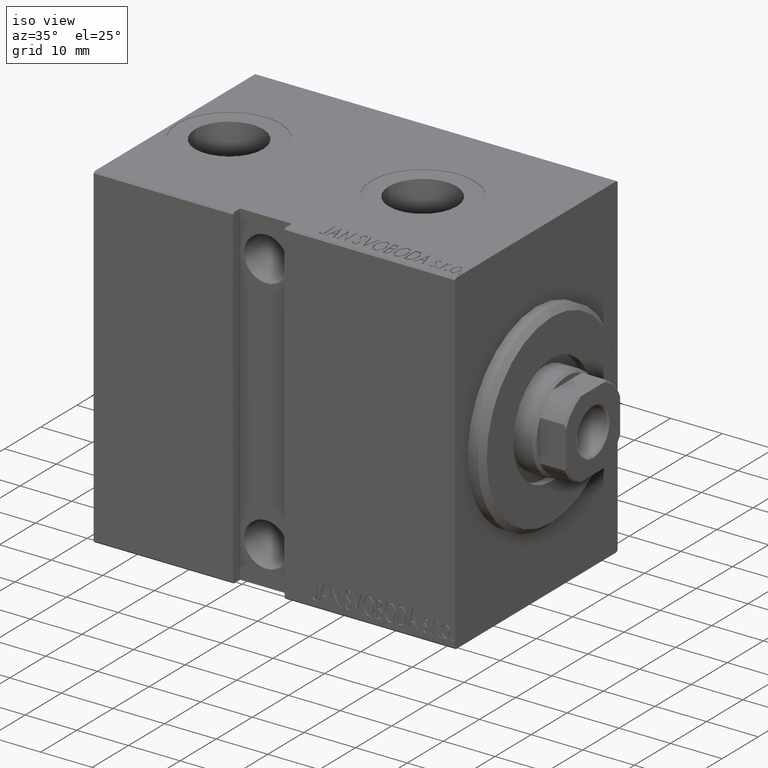
[diagram: clean part render]
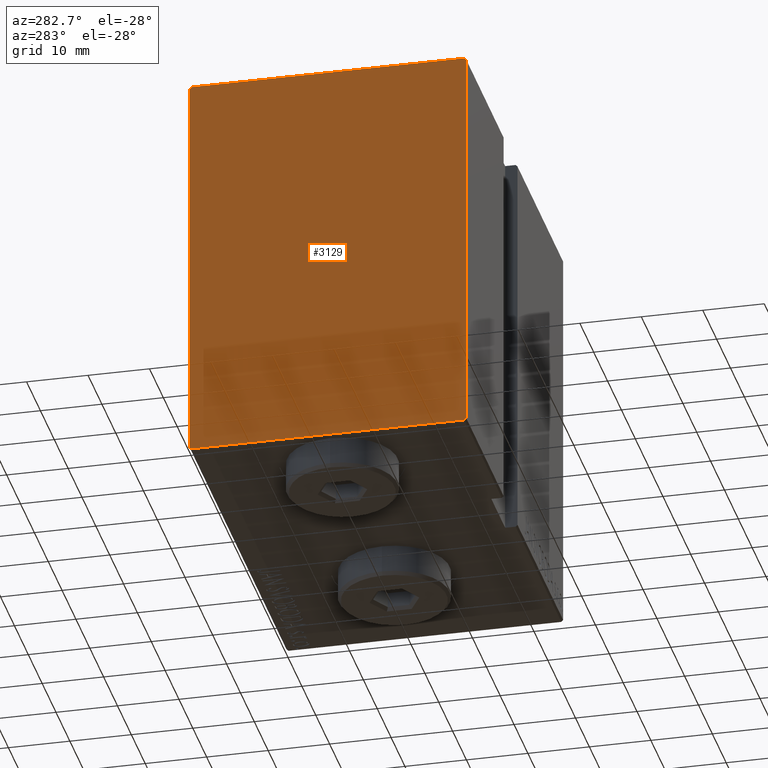
[diagram: tour spotlight — one face highlighted and labeled with its STEP entity id]
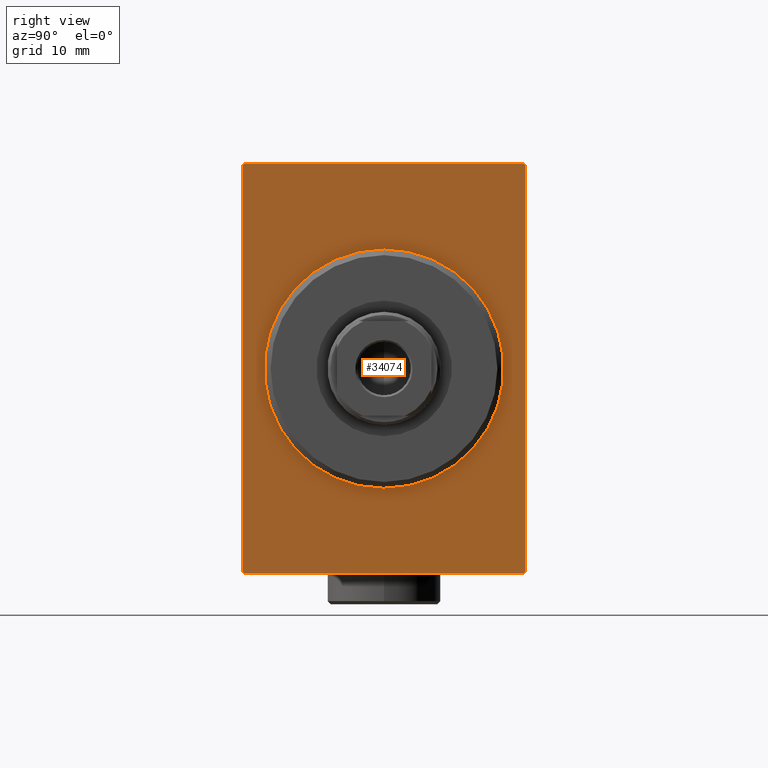
[diagram: tour spotlight — one face highlighted and labeled with its STEP entity id]
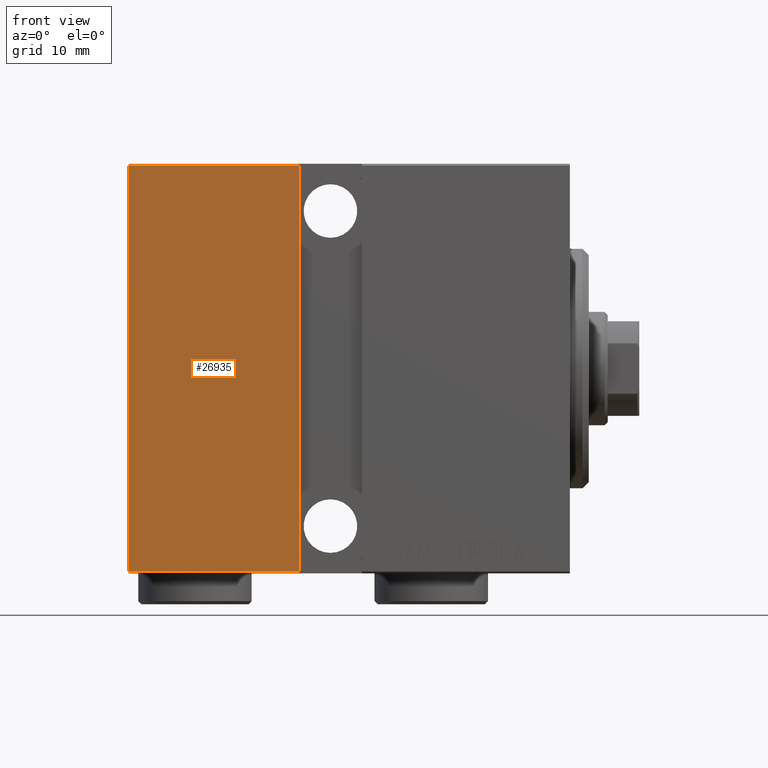
[diagram: tour spotlight — one face highlighted and labeled with its STEP entity id]
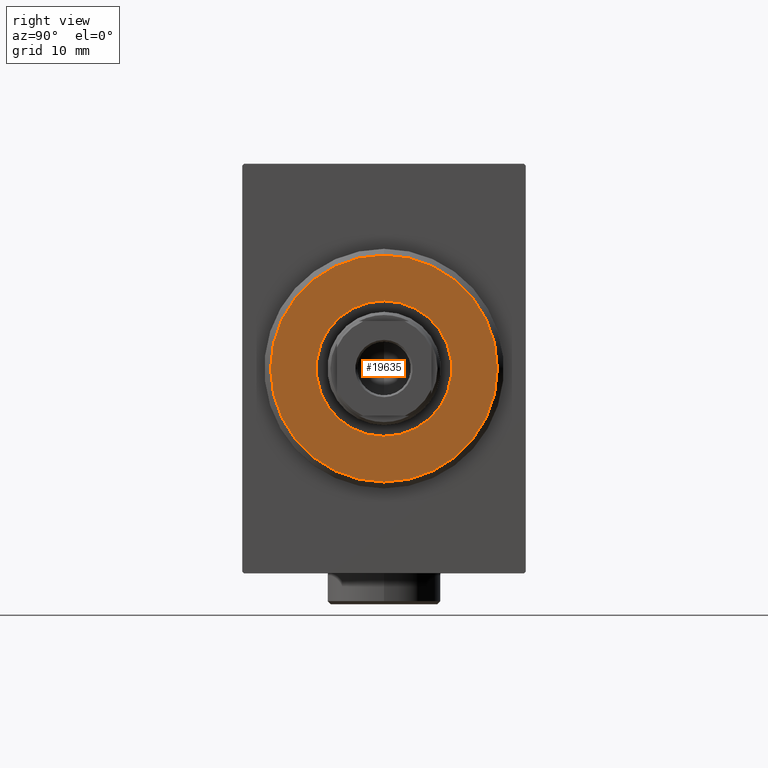
[diagram: tour spotlight — one face highlighted and labeled with its STEP entity id]
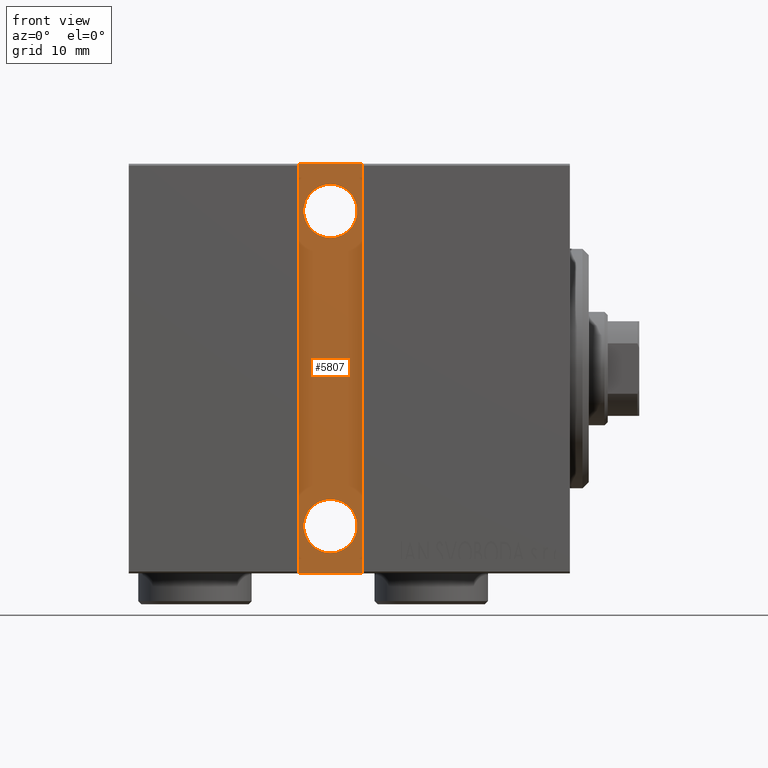
[diagram: tour spotlight — one face highlighted and labeled with its STEP entity id]
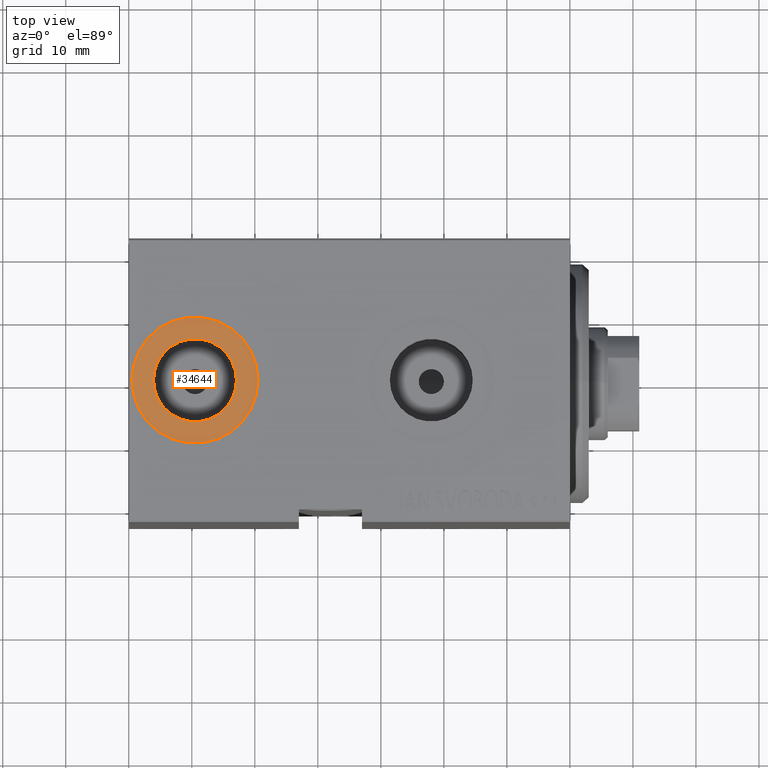
[diagram: tour spotlight — one face highlighted and labeled with its STEP entity id]
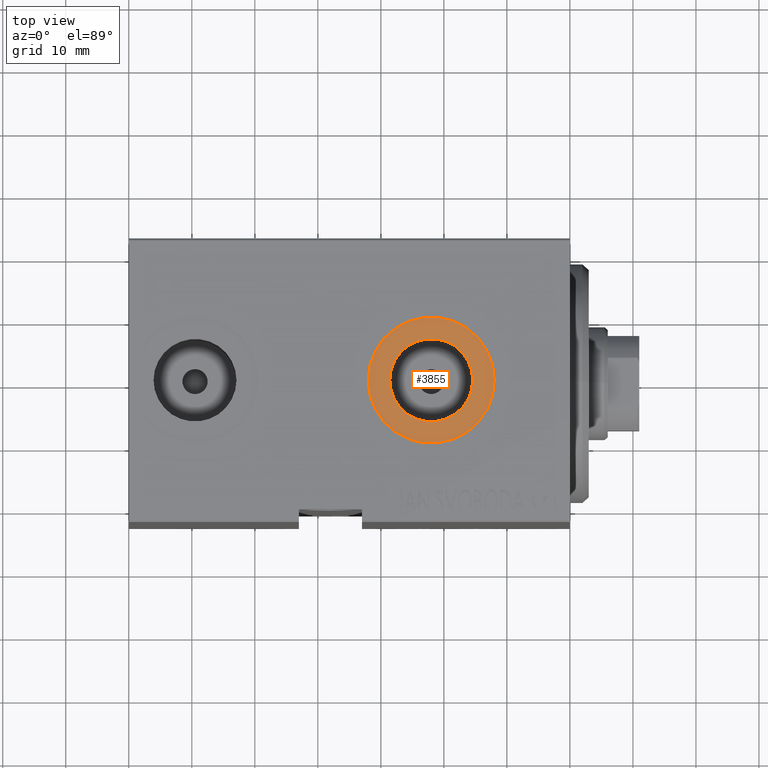
[diagram: tour spotlight — one face highlighted and labeled with its STEP entity id]
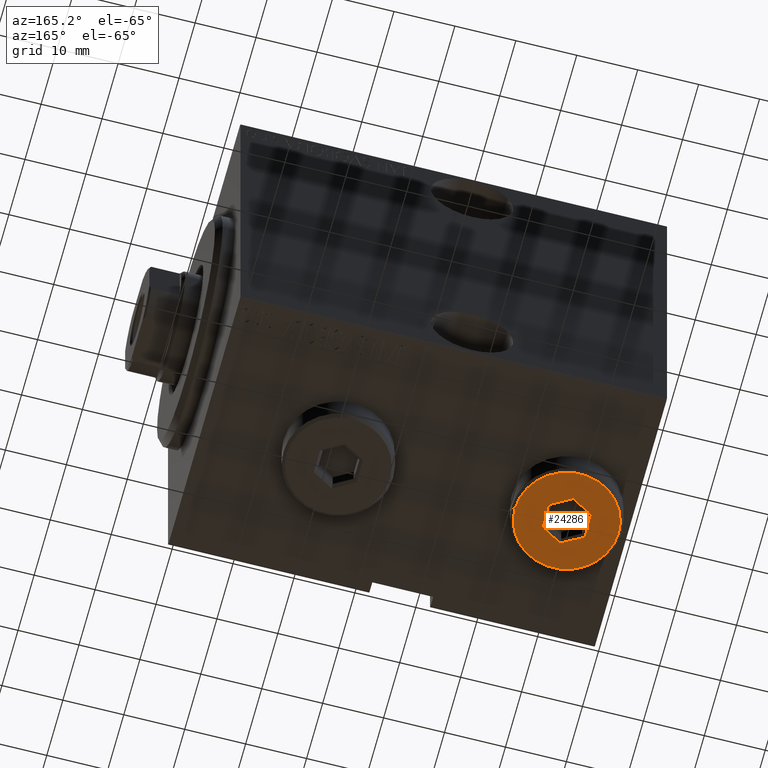
[diagram: tour spotlight — one face highlighted and labeled with its STEP entity id]
A machine part: a face-by-face anatomy tour. The part has 900 B-rep faces; the first image is the clean iso view, then the 8 largest visible faces are spotlighted one at a time (largest first), each with its STEP entity span.

Face 1 — auxiliary view, entity #3129. In plain terms, the highlighted planar face has unit normal (-1, 0, 0).
Definition (entity closure, byte-faithful):
#384 = EDGE_CURVE ( 'NONE', #14813, #21566, #23556, .T. ) ;
#1738 = CARTESIAN_POINT ( 'NONE',  ( 70.00000000000000000, 22.49999999999999645, 32.20000000000000284 ) ) ;
#2162 = DIRECTION ( 'NONE',  ( 0.000000000000000000, -1.067522139062650425E-16, 1.000000000000000000 ) ) ;
#2276 = VECTOR ( 'NONE', #36977, 1000.000000000000000 ) ;
#3084 = ORIENTED_EDGE ( 'NONE', *, *, #17445, .T. ) ;
#3129 = ADVANCED_FACE ( 'NONE', ( #37179 ), #30693, .T. ) ;
#3992 = EDGE_CURVE ( 'NONE', #15362, #18437, #30060, .T. ) ;
#4915 = EDGE_CURVE ( 'NONE', #15249, #14813, #22967, .T. ) ;
#5489 = LINE ( 'NONE', #14869, #30431 ) ;
#6127 = CARTESIAN_POINT ( 'NONE',  ( 70.00000000000000000, -22.49999999999999645, 32.20000000000000284 ) ) ;
#7268 = CARTESIAN_POINT ( 'NONE',  ( 70.00000000000000000, 22.49999999999999645, 32.50000000000000711 ) ) ;
#7403 = CARTESIAN_POINT ( 'NONE',  ( 70.00000000000000000, -22.19999999999998863, 32.50000000000000000 ) ) ;
#7725 = DIRECTION ( 'NONE',  ( -0.000000000000000000, -0.7071067811865393571, 0.7071067811865556774 ) ) ;
#11396 = ORIENTED_EDGE ( 'NONE', *, *, #384, .T. ) ;
#11893 = CARTESIAN_POINT ( 'NONE',  ( 70.00000000000000000, 22.19999999999999929, 32.50000000000000711 ) ) ;
#12931 = VECTOR ( 'NONE', #44171, 1000.000000000000114 ) ;
#13710 = CARTESIAN_POINT ( 'NONE',  ( 70.00000000000000000, 0.000000000000000000, 0.000000000000000000 ) ) ;
#14813 = VERTEX_POINT ( 'NONE', #17976 ) ;
#14869 = CARTESIAN_POINT ( 'NONE',  ( 70.00000000000000000, -27.35000000000000142, 27.35000000000000142 ) ) ;
#15249 = VERTEX_POINT ( 'NONE', #25446 ) ;
#15362 = VERTEX_POINT ( 'NONE', #26983 ) ;
#16236 = ORIENTED_EDGE ( 'NONE', *, *, #26468, .T. ) ;
#17007 = EDGE_LOOP ( 'NONE', ( #11396, #32890, #30630, #16236, #3084, #25378, #23686, #41475 ) ) ;
#17085 = CARTESIAN_POINT ( 'NONE',  ( 70.00000000000000000, -22.49999999999999645, -32.50000000000000000 ) ) ;
#17445 = EDGE_CURVE ( 'NONE', #43656, #37512, #34286, .T. ) ;
#17765 = LINE ( 'NONE', #30724, #27166 ) ;
#17976 = CARTESIAN_POINT ( 'NONE',  ( 70.00000000000000000, -22.19999999999999929, -32.50000000000000000 ) ) ;
#18338 = EDGE_CURVE ( 'NONE', #21566, #15362, #27412, .T. ) ;
#18437 = VERTEX_POINT ( 'NONE', #1738 ) ;
#19419 = EDGE_CURVE ( 'NONE', #21954, #15249, #32338, .T. ) ;
#20274 = CARTESIAN_POINT ( 'NONE',  ( 70.00000000000000000, -27.35000000000000142, -27.35000000000000142 ) ) ;
#20313 = VECTOR ( 'NONE', #38824, 1000.000000000000000 ) ;
#21461 = AXIS2_PLACEMENT_3D ( 'NONE', #13710, #37397, #37836 ) ;
#21566 = VERTEX_POINT ( 'NONE', #21872 ) ;
#21872 = CARTESIAN_POINT ( 'NONE',  ( 70.00000000000000000, 22.19999999999998153, -32.50000000000000000 ) ) ;
#21954 = VERTEX_POINT ( 'NONE', #6127 ) ;
#22967 = LINE ( 'NONE', #20274, #12931 ) ;
#23415 = CARTESIAN_POINT ( 'NONE',  ( 70.00000000000000000, 27.34999999999999432, -27.34999999999999432 ) ) ;
#23556 = LINE ( 'NONE', #17085, #2276 ) ;
#23637 = EDGE_CURVE ( 'NONE', #37512, #21954, #5489, .T. ) ;
#23686 = ORIENTED_EDGE ( 'NONE', *, *, #19419, .T. ) ;
#25378 = ORIENTED_EDGE ( 'NONE', *, *, #23637, .T. ) ;
#25446 = CARTESIAN_POINT ( 'NONE',  ( 70.00000000000000000, -22.49999999999999645, -32.20000000000000284 ) ) ;
#26468 = EDGE_CURVE ( 'NONE', #18437, #43656, #17765, .T. ) ;
#26983 = CARTESIAN_POINT ( 'NONE',  ( 70.00000000000000000, 22.50000000000000355, -32.19999999999999574 ) ) ;
#27166 = VECTOR ( 'NONE', #7725, 1000.000000000000000 ) ;
#27412 = LINE ( 'NONE', #23415, #36742 ) ;
#28219 = VECTOR ( 'NONE', #41882, 1000.000000000000000 ) ;
#30060 = LINE ( 'NONE', #32962, #36494 ) ;
#30431 = VECTOR ( 'NONE', #32064, 1000.000000000000114 ) ;
#30630 = ORIENTED_EDGE ( 'NONE', *, *, #3992, .T. ) ;
#30693 = PLANE ( 'NONE',  #21461 ) ;
#30724 = CARTESIAN_POINT ( 'NONE',  ( 70.00000000000000000, 27.35000000000026077, 27.34999999999962839 ) ) ;
#30995 = DIRECTION ( 'NONE',  ( -0.000000000000000000, 0.7071067811865474617, 0.7071067811865474617 ) ) ;
#32064 = DIRECTION ( 'NONE',  ( 0.000000000000000000, -0.7071067811865474617, -0.7071067811865474617 ) ) ;
#32119 = CARTESIAN_POINT ( 'NONE',  ( 70.00000000000000000, -22.49999999999999645, 32.50000000000000000 ) ) ;
#32338 = LINE ( 'NONE', #32119, #20313 ) ;
#32890 = ORIENTED_EDGE ( 'NONE', *, *, #18338, .T. ) ;
#32962 = CARTESIAN_POINT ( 'NONE',  ( 70.00000000000000000, 22.50000000000000355, -32.50000000000000000 ) ) ;
#34286 = LINE ( 'NONE', #7268, #28219 ) ;
#36494 = VECTOR ( 'NONE', #2162, 1000.000000000000000 ) ;
#36742 = VECTOR ( 'NONE', #30995, 1000.000000000000114 ) ;
#36977 = DIRECTION ( 'NONE',  ( 0.000000000000000000, 1.000000000000000000, 0.000000000000000000 ) ) ;
#37179 = FACE_OUTER_BOUND ( 'NONE', #17007, .T. ) ;
#37397 = DIRECTION ( 'NONE',  ( 1.000000000000000000, 0.000000000000000000, 0.000000000000000000 ) ) ;
#37512 = VERTEX_POINT ( 'NONE', #7403 ) ;
#37836 = DIRECTION ( 'NONE',  ( 0.000000000000000000, 0.000000000000000000, -1.000000000000000000 ) ) ;
#38824 = DIRECTION ( 'NONE',  ( 0.000000000000000000, 0.000000000000000000, -1.000000000000000000 ) ) ;
#41475 = ORIENTED_EDGE ( 'NONE', *, *, #4915, .T. ) ;
#41882 = DIRECTION ( 'NONE',  ( 0.000000000000000000, -1.000000000000000000, -1.541976423090495633E-16 ) ) ;
#43656 = VERTEX_POINT ( 'NONE', #11893 ) ;
#44171 = DIRECTION ( 'NONE',  ( -0.000000000000000000, 0.7071067811865474617, -0.7071067811865474617 ) ) ;

Face 2 — right view, entity #34074. In plain terms, the highlighted planar face has unit normal (-1, 0, 0).
Definition (entity closure, byte-faithful):
#67 = CARTESIAN_POINT ( 'NONE',  ( 0.000000000000000000, 0.000000000000000000, 18.50000000000000355 ) ) ;
#90 = CARTESIAN_POINT ( 'NONE',  ( 0.000000000000000000, 0.000000000000000000, 0.000000000000000000 ) ) ;
#1266 = DIRECTION ( 'NONE',  ( 0.000000000000000000, 0.000000000000000000, -1.000000000000000000 ) ) ;
#1340 = CARTESIAN_POINT ( 'NONE',  ( 0.000000000000000000, 22.49999999999999645, 32.50000000000000711 ) ) ;
#1813 = VERTEX_POINT ( 'NONE', #36882 ) ;
#1860 = VECTOR ( 'NONE', #29313, 1000.000000000000000 ) ;
#1865 = EDGE_CURVE ( 'NONE', #33416, #36152, #17206, .T. ) ;
#2483 = VERTEX_POINT ( 'NONE', #40783 ) ;
#3160 = VECTOR ( 'NONE', #15499, 1000.000000000000114 ) ;
#3491 = VERTEX_POINT ( 'NONE', #67 ) ;
#3582 = VERTEX_POINT ( 'NONE', #41581 ) ;
#3938 = CARTESIAN_POINT ( 'NONE',  ( 0.000000000000000000, 0.000000000000000000, 0.000000000000000000 ) ) ;
#4633 = ORIENTED_EDGE ( 'NONE', *, *, #37374, .T. ) ;
#8055 = EDGE_CURVE ( 'NONE', #17882, #20972, #12914, .T. ) ;
#8500 = CARTESIAN_POINT ( 'NONE',  ( 0.000000000000000000, 22.19999999999999929, 32.50000000000000711 ) ) ;
#8922 = VECTOR ( 'NONE', #36443, 1000.000000000000114 ) ;
#9695 = DIRECTION ( 'NONE',  ( 0.000000000000000000, 0.000000000000000000, -1.000000000000000000 ) ) ;
#9713 = CARTESIAN_POINT ( 'NONE',  ( 0.000000000000000000, 22.19999999999998153, -32.50000000000000000 ) ) ;
#12678 = FACE_OUTER_BOUND ( 'NONE', #39360, .T. ) ;
#12914 = LINE ( 'NONE', #19626, #40168 ) ;
#13252 = CARTESIAN_POINT ( 'NONE',  ( 0.000000000000000000, -22.49999999999999645, 32.20000000000000284 ) ) ;
#13287 = EDGE_CURVE ( 'NONE', #2483, #20972, #32035, .T. ) ;
#13338 = PLANE ( 'NONE',  #17459 ) ;
#14836 = EDGE_CURVE ( 'NONE', #17882, #1813, #42101, .T. ) ;
#15050 = CARTESIAN_POINT ( 'NONE',  ( 0.000000000000000000, -22.19999999999999929, -32.50000000000000000 ) ) ;
#15499 = DIRECTION ( 'NONE',  ( -0.000000000000000000, -0.7071067811865474617, 0.7071067811865474617 ) ) ;
#15685 = LINE ( 'NONE', #19483, #1860 ) ;
#15695 = LINE ( 'NONE', #29323, #34000 ) ;
#15742 = VERTEX_POINT ( 'NONE', #20237 ) ;
#16257 = FACE_BOUND ( 'NONE', #21501, .T. ) ;
#16603 = ORIENTED_EDGE ( 'NONE', *, *, #24007, .F. ) ;
#16829 = ORIENTED_EDGE ( 'NONE', *, *, #38400, .F. ) ;
#17206 = LINE ( 'NONE', #24117, #19302 ) ;
#17459 = AXIS2_PLACEMENT_3D ( 'NONE', #29886, #40595, #19601 ) ;
#17787 = ORIENTED_EDGE ( 'NONE', *, *, #35999, .T. ) ;
#17882 = VERTEX_POINT ( 'NONE', #13252 ) ;
#18202 = CARTESIAN_POINT ( 'NONE',  ( 0.000000000000000000, -22.49999999999999645, 32.20000000000000284 ) ) ;
#19302 = VECTOR ( 'NONE', #31491, 1000.000000000000114 ) ;
#19483 = CARTESIAN_POINT ( 'NONE',  ( 0.000000000000000000, 22.19999999999999929, 32.50000000000000711 ) ) ;
#19601 = DIRECTION ( 'NONE',  ( 0.000000000000000000, 0.000000000000000000, -1.000000000000000000 ) ) ;
#19626 = CARTESIAN_POINT ( 'NONE',  ( 0.000000000000000000, -22.49999999999999645, 32.50000000000000000 ) ) ;
#19702 = VECTOR ( 'NONE', #22221, 1000.000000000000000 ) ;
#20237 = CARTESIAN_POINT ( 'NONE',  ( 0.000000000000000000, 22.49999999999999645, 32.20000000000000284 ) ) ;
#20972 = VERTEX_POINT ( 'NONE', #22632 ) ;
#21501 = EDGE_LOOP ( 'NONE', ( #17787, #25572 ) ) ;
#22221 = DIRECTION ( 'NONE',  ( 0.000000000000000000, -1.067522139062650425E-16, 1.000000000000000000 ) ) ;
#22632 = CARTESIAN_POINT ( 'NONE',  ( 0.000000000000000000, -22.49999999999999645, -32.20000000000000284 ) ) ;
#22736 = ORIENTED_EDGE ( 'NONE', *, *, #13287, .T. ) ;
#24007 = EDGE_CURVE ( 'NONE', #2483, #36152, #15695, .T. ) ;
#24117 = CARTESIAN_POINT ( 'NONE',  ( 0.000000000000000000, 22.50000000000000355, -32.19999999999999574 ) ) ;
#25572 = ORIENTED_EDGE ( 'NONE', *, *, #25606, .T. ) ;
#25606 = EDGE_CURVE ( 'NONE', #3582, #3491, #34322, .T. ) ;
#26866 = DIRECTION ( 'NONE',  ( 1.000000000000000000, 0.000000000000000000, 0.000000000000000000 ) ) ;
#29313 = DIRECTION ( 'NONE',  ( -0.000000000000000000, 0.7071067811865393571, -0.7071067811865556774 ) ) ;
#29323 = CARTESIAN_POINT ( 'NONE',  ( 0.000000000000000000, -22.49999999999999645, -32.50000000000000000 ) ) ;
#29886 = CARTESIAN_POINT ( 'NONE',  ( 0.000000000000000000, 0.000000000000000000, 0.000000000000000000 ) ) ;
#30035 = AXIS2_PLACEMENT_3D ( 'NONE', #90, #26866, #9695 ) ;
#30551 = ORIENTED_EDGE ( 'NONE', *, *, #14836, .T. ) ;
#31491 = DIRECTION ( 'NONE',  ( 0.000000000000000000, -0.7071067811865474617, -0.7071067811865474617 ) ) ;
#32035 = LINE ( 'NONE', #15050, #3160 ) ;
#32054 = DIRECTION ( 'NONE',  ( 1.000000000000000000, 0.000000000000000000, 0.000000000000000000 ) ) ;
#32729 = LINE ( 'NONE', #35424, #19702 ) ;
#33416 = VERTEX_POINT ( 'NONE', #39467 ) ;
#33470 = DIRECTION ( 'NONE',  ( 0.000000000000000000, 0.000000000000000000, -1.000000000000000000 ) ) ;
#33676 = ORIENTED_EDGE ( 'NONE', *, *, #37995, .F. ) ;
#33986 = VECTOR ( 'NONE', #37955, 1000.000000000000000 ) ;
#34000 = VECTOR ( 'NONE', #36247, 1000.000000000000000 ) ;
#34074 = ADVANCED_FACE ( 'NONE', ( #16257, #12678 ), #13338, .F. ) ;
#34322 = CIRCLE ( 'NONE', #30035, 18.50000000000000355 ) ;
#35265 = LINE ( 'NONE', #1340, #33986 ) ;
#35424 = CARTESIAN_POINT ( 'NONE',  ( 0.000000000000000000, 22.50000000000000355, -32.50000000000000000 ) ) ;
#35999 = EDGE_CURVE ( 'NONE', #3491, #3582, #42493, .T. ) ;
#36152 = VERTEX_POINT ( 'NONE', #9713 ) ;
#36247 = DIRECTION ( 'NONE',  ( 0.000000000000000000, 1.000000000000000000, 0.000000000000000000 ) ) ;
#36443 = DIRECTION ( 'NONE',  ( -0.000000000000000000, 0.7071067811865474617, 0.7071067811865474617 ) ) ;
#36790 = AXIS2_PLACEMENT_3D ( 'NONE', #3938, #32054, #1266 ) ;
#36882 = CARTESIAN_POINT ( 'NONE',  ( 0.000000000000000000, -22.19999999999998863, 32.50000000000000000 ) ) ;
#37374 = EDGE_CURVE ( 'NONE', #41235, #15742, #15685, .T. ) ;
#37955 = DIRECTION ( 'NONE',  ( 0.000000000000000000, -1.000000000000000000, -1.541976423090495633E-16 ) ) ;
#37995 = EDGE_CURVE ( 'NONE', #33416, #15742, #32729, .T. ) ;
#38400 = EDGE_CURVE ( 'NONE', #41235, #1813, #35265, .T. ) ;
#39360 = EDGE_LOOP ( 'NONE', ( #16829, #4633, #33676, #42639, #16603, #22736, #41928, #30551 ) ) ;
#39467 = CARTESIAN_POINT ( 'NONE',  ( 0.000000000000000000, 22.50000000000000355, -32.19999999999999574 ) ) ;
#40168 = VECTOR ( 'NONE', #33470, 1000.000000000000000 ) ;
#40595 = DIRECTION ( 'NONE',  ( 1.000000000000000000, 0.000000000000000000, 0.000000000000000000 ) ) ;
#40783 = CARTESIAN_POINT ( 'NONE',  ( 0.000000000000000000, -22.19999999999999929, -32.50000000000000000 ) ) ;
#41235 = VERTEX_POINT ( 'NONE', #8500 ) ;
#41581 = CARTESIAN_POINT ( 'NONE',  ( 0.000000000000000000, 2.265596578422603791E-15, -18.50000000000000355 ) ) ;
#41928 = ORIENTED_EDGE ( 'NONE', *, *, #8055, .F. ) ;
#42101 = LINE ( 'NONE', #18202, #8922 ) ;
#42493 = CIRCLE ( 'NONE', #36790, 18.50000000000000355 ) ;
#42639 = ORIENTED_EDGE ( 'NONE', *, *, #1865, .T. ) ;

Face 3 — front view, entity #26935. In plain terms, the highlighted planar face has unit normal (-0, 1, -0).
Definition (entity closure, byte-faithful):
#1738 = CARTESIAN_POINT ( 'NONE',  ( 70.00000000000000000, 22.49999999999999645, 32.20000000000000284 ) ) ;
#2162 = DIRECTION ( 'NONE',  ( 0.000000000000000000, -1.067522139062650425E-16, 1.000000000000000000 ) ) ;
#3992 = EDGE_CURVE ( 'NONE', #15362, #18437, #30060, .T. ) ;
#5256 = CARTESIAN_POINT ( 'NONE',  ( 70.00000000000000000, 22.49999999999999645, 32.20000000000000284 ) ) ;
#5357 = DIRECTION ( 'NONE',  ( 0.000000000000000000, 1.067522139062650425E-16, -1.000000000000000000 ) ) ;
#8214 = VECTOR ( 'NONE', #35934, 1000.000000000000000 ) ;
#9284 = DIRECTION ( 'NONE',  ( 1.000000000000000000, 0.000000000000000000, 0.000000000000000000 ) ) ;
#9812 = LINE ( 'NONE', #33476, #8214 ) ;
#11661 = ORIENTED_EDGE ( 'NONE', *, *, #3992, .F. ) ;
#11683 = VECTOR ( 'NONE', #9284, 1000.000000000000000 ) ;
#12263 = CARTESIAN_POINT ( 'NONE',  ( 70.00000000000000000, 22.50000000000000355, -32.50000000000000000 ) ) ;
#12734 = ORIENTED_EDGE ( 'NONE', *, *, #31842, .T. ) ;
#15362 = VERTEX_POINT ( 'NONE', #26983 ) ;
#15731 = AXIS2_PLACEMENT_3D ( 'NONE', #12263, #19189, #5357 ) ;
#17190 = ORIENTED_EDGE ( 'NONE', *, *, #18322, .F. ) ;
#18322 = EDGE_CURVE ( 'NONE', #22476, #37198, #9812, .T. ) ;
#18437 = VERTEX_POINT ( 'NONE', #1738 ) ;
#19189 = DIRECTION ( 'NONE',  ( 0.000000000000000000, -1.000000000000000000, -1.067522139062650425E-16 ) ) ;
#21399 = ORIENTED_EDGE ( 'NONE', *, *, #43076, .T. ) ;
#22051 = CARTESIAN_POINT ( 'NONE',  ( 43.00000000000000711, 22.50000000000000000, 32.20000000000000284 ) ) ;
#22476 = VERTEX_POINT ( 'NONE', #22051 ) ;
#25778 = LINE ( 'NONE', #5256, #11683 ) ;
#26218 = DIRECTION ( 'NONE',  ( -1.000000000000000000, 0.000000000000000000, 0.000000000000000000 ) ) ;
#26935 = ADVANCED_FACE ( 'NONE', ( #39748 ), #28800, .F. ) ;
#26983 = CARTESIAN_POINT ( 'NONE',  ( 70.00000000000000000, 22.50000000000000355, -32.19999999999999574 ) ) ;
#28800 = PLANE ( 'NONE',  #15731 ) ;
#29134 = LINE ( 'NONE', #29586, #40395 ) ;
#29586 = CARTESIAN_POINT ( 'NONE',  ( 70.00000000000000000, 22.50000000000000355, -32.19999999999999574 ) ) ;
#30060 = LINE ( 'NONE', #32962, #36494 ) ;
#31842 = EDGE_CURVE ( 'NONE', #22476, #18437, #25778, .T. ) ;
#32962 = CARTESIAN_POINT ( 'NONE',  ( 70.00000000000000000, 22.50000000000000355, -32.50000000000000000 ) ) ;
#33476 = CARTESIAN_POINT ( 'NONE',  ( 43.00000000000000000, 22.50000000000000000, -32.50000000000000000 ) ) ;
#35934 = DIRECTION ( 'NONE',  ( -1.067522139062651164E-16, -0.000000000000000000, -1.000000000000000000 ) ) ;
#36494 = VECTOR ( 'NONE', #2162, 1000.000000000000000 ) ;
#37198 = VERTEX_POINT ( 'NONE', #44092 ) ;
#39713 = EDGE_LOOP ( 'NONE', ( #11661, #21399, #17190, #12734 ) ) ;
#39748 = FACE_OUTER_BOUND ( 'NONE', #39713, .T. ) ;
#40395 = VECTOR ( 'NONE', #26218, 1000.000000000000000 ) ;
#43076 = EDGE_CURVE ( 'NONE', #15362, #37198, #29134, .T. ) ;
#44092 = CARTESIAN_POINT ( 'NONE',  ( 43.00000000000000000, 22.50000000000000000, -32.19999999999999574 ) ) ;

Face 4 — right view, entity #19635. In plain terms, the highlighted planar face has unit normal (1, 0, 0).
Definition (entity closure, byte-faithful):
#347 = DIRECTION ( 'NONE',  ( -1.000000000000000000, 0.000000000000000000, -0.000000000000000000 ) ) ;
#2527 = AXIS2_PLACEMENT_3D ( 'NONE', #34323, #3732, #17346 ) ;
#2543 = ORIENTED_EDGE ( 'NONE', *, *, #39141, .T. ) ;
#3732 = DIRECTION ( 'NONE',  ( 1.000000000000000000, -0.000000000000000000, 0.000000000000000000 ) ) ;
#3947 = CIRCLE ( 'NONE', #18197, 17.99999999999999645 ) ;
#4753 = AXIS2_PLACEMENT_3D ( 'NONE', #7888, #28627, #11659 ) ;
#5048 = ORIENTED_EDGE ( 'NONE', *, *, #19928, .T. ) ;
#6162 = DIRECTION ( 'NONE',  ( 1.000000000000000000, -0.000000000000000000, 0.000000000000000000 ) ) ;
#6594 = DIRECTION ( 'NONE',  ( 0.000000000000000000, 0.000000000000000000, -1.000000000000000000 ) ) ;
#7476 = ORIENTED_EDGE ( 'NONE', *, *, #10407, .T. ) ;
#7888 = CARTESIAN_POINT ( 'NONE',  ( 3.000000000000000000, 0.000000000000000000, 0.000000000000000000 ) ) ;
#10407 = EDGE_CURVE ( 'NONE', #28265, #40077, #28757, .T. ) ;
#10431 = PLANE ( 'NONE',  #2527 ) ;
#10598 = DIRECTION ( 'NONE',  ( 0.000000000000000000, 0.000000000000000000, -1.000000000000000000 ) ) ;
#11659 = DIRECTION ( 'NONE',  ( 0.000000000000000000, 0.000000000000000000, -1.000000000000000000 ) ) ;
#11755 = EDGE_LOOP ( 'NONE', ( #5048, #2543 ) ) ;
#12498 = CIRCLE ( 'NONE', #36778, 10.75000000000000000 ) ;
#13745 = VERTEX_POINT ( 'NONE', #17915 ) ;
#15214 = AXIS2_PLACEMENT_3D ( 'NONE', #21696, #31763, #41824 ) ;
#17346 = DIRECTION ( 'NONE',  ( 0.000000000000000000, 0.000000000000000000, -1.000000000000000000 ) ) ;
#17801 = ORIENTED_EDGE ( 'NONE', *, *, #35263, .T. ) ;
#17915 = CARTESIAN_POINT ( 'NONE',  ( 3.000000000000000000, 0.000000000000000000, 10.75000000000000000 ) ) ;
#18197 = AXIS2_PLACEMENT_3D ( 'NONE', #23116, #6162, #6594 ) ;
#19635 = ADVANCED_FACE ( 'NONE', ( #30968, #20259 ), #10431, .T. ) ;
#19928 = EDGE_CURVE ( 'NONE', #13745, #41524, #12498, .T. ) ;
#20259 = FACE_BOUND ( 'NONE', #11755, .T. ) ;
#21008 = CARTESIAN_POINT ( 'NONE',  ( 3.000000000000000000, 2.265596578422603002E-15, -17.99999999999999645 ) ) ;
#21696 = CARTESIAN_POINT ( 'NONE',  ( 3.000000000000000000, 0.000000000000000000, 0.000000000000000000 ) ) ;
#23116 = CARTESIAN_POINT ( 'NONE',  ( 3.000000000000000000, 0.000000000000000000, 0.000000000000000000 ) ) ;
#28265 = VERTEX_POINT ( 'NONE', #21008 ) ;
#28627 = DIRECTION ( 'NONE',  ( -1.000000000000000000, 0.000000000000000000, -0.000000000000000000 ) ) ;
#28757 = CIRCLE ( 'NONE', #15214, 17.99999999999999645 ) ;
#30919 = CARTESIAN_POINT ( 'NONE',  ( 3.000000000000000000, 0.000000000000000000, 0.000000000000000000 ) ) ;
#30968 = FACE_OUTER_BOUND ( 'NONE', #31300, .T. ) ;
#31300 = EDGE_LOOP ( 'NONE', ( #17801, #7476 ) ) ;
#31763 = DIRECTION ( 'NONE',  ( 1.000000000000000000, -0.000000000000000000, 0.000000000000000000 ) ) ;
#34323 = CARTESIAN_POINT ( 'NONE',  ( 3.000000000000000000, 0.000000000000000000, 0.000000000000000000 ) ) ;
#35263 = EDGE_CURVE ( 'NONE', #40077, #28265, #3947, .T. ) ;
#35779 = CARTESIAN_POINT ( 'NONE',  ( 3.000000000000000000, 0.000000000000000000, 17.99999999999999645 ) ) ;
#36114 = CIRCLE ( 'NONE', #4753, 10.75000000000000000 ) ;
#36778 = AXIS2_PLACEMENT_3D ( 'NONE', #30919, #347, #10598 ) ;
#39141 = EDGE_CURVE ( 'NONE', #41524, #13745, #36114, .T. ) ;
#40077 = VERTEX_POINT ( 'NONE', #35779 ) ;
#41524 = VERTEX_POINT ( 'NONE', #44018 ) ;
#41824 = DIRECTION ( 'NONE',  ( 0.000000000000000000, 0.000000000000000000, -1.000000000000000000 ) ) ;
#44018 = CARTESIAN_POINT ( 'NONE',  ( 3.000000000000000000, 1.316495309083404223E-15, -10.75000000000000000 ) ) ;

Face 5 — front view, entity #5807. In plain terms, the highlighted planar face has unit normal (0, 1, 0).
Definition (entity closure, byte-faithful):
#314 = CARTESIAN_POINT ( 'NONE',  ( 38.00000000000001421, 20.49999999999999645, -25.00000000000000000 ) ) ;
#923 = EDGE_CURVE ( 'NONE', #19782, #10039, #22201, .T. ) ;
#1600 = CARTESIAN_POINT ( 'NONE',  ( 33.00000000000000711, 20.49999999999999645, -32.50000000000000000 ) ) ;
#1820 = DIRECTION ( 'NONE',  ( 0.000000000000000000, -1.000000000000000000, 0.000000000000000000 ) ) ;
#2259 = DIRECTION ( 'NONE',  ( 0.000000000000000000, -0.000000000000000000, -1.000000000000000000 ) ) ;
#2639 = CIRCLE ( 'NONE', #17595, 4.249999999999996447 ) ;
#3266 = CARTESIAN_POINT ( 'NONE',  ( 38.00000000000001421, 20.49999999999999645, 20.75000000000000355 ) ) ;
#3603 = VERTEX_POINT ( 'NONE', #1600 ) ;
#3612 = ORIENTED_EDGE ( 'NONE', *, *, #43152, .T. ) ;
#3872 = DIRECTION ( 'NONE',  ( 0.000000000000000000, -1.000000000000000000, 0.000000000000000000 ) ) ;
#5359 = ORIENTED_EDGE ( 'NONE', *, *, #27092, .T. ) ;
#5807 = ADVANCED_FACE ( 'NONE', ( #18656, #32388, #33285 ), #36631, .F. ) ;
#6279 = DIRECTION ( 'NONE',  ( 0.000000000000000000, 0.000000000000000000, -1.000000000000000000 ) ) ;
#6681 = EDGE_CURVE ( 'NONE', #19964, #3603, #14545, .T. ) ;
#6682 = EDGE_LOOP ( 'NONE', ( #5359, #17510, #21138, #22805 ) ) ;
#7043 = EDGE_LOOP ( 'NONE', ( #35393, #8150 ) ) ;
#8150 = ORIENTED_EDGE ( 'NONE', *, *, #9046, .T. ) ;
#9016 = EDGE_CURVE ( 'NONE', #34891, #31069, #9290, .T. ) ;
#9046 = EDGE_CURVE ( 'NONE', #10039, #19782, #30148, .T. ) ;
#9072 = DIRECTION ( 'NONE',  ( 0.000000000000000000, -1.000000000000000000, 0.000000000000000000 ) ) ;
#9290 = LINE ( 'NONE', #43243, #34448 ) ;
#10039 = VERTEX_POINT ( 'NONE', #3266 ) ;
#10386 = CARTESIAN_POINT ( 'NONE',  ( 38.00000000000001421, 20.49999999999999645, -20.75000000000000355 ) ) ;
#10852 = VECTOR ( 'NONE', #17898, 1000.000000000000000 ) ;
#10890 = AXIS2_PLACEMENT_3D ( 'NONE', #43462, #9072, #29841 ) ;
#11839 = CIRCLE ( 'NONE', #36819, 4.249999999999996447 ) ;
#12280 = CARTESIAN_POINT ( 'NONE',  ( 0.000000000000000000, 20.49999999999999645, 0.000000000000000000 ) ) ;
#13487 = CARTESIAN_POINT ( 'NONE',  ( 43.00000000000000711, 20.49999999999999645, 32.49999999999995737 ) ) ;
#13907 = DIRECTION ( 'NONE',  ( 0.000000000000000000, 0.000000000000000000, -1.000000000000000000 ) ) ;
#14545 = LINE ( 'NONE', #22118, #10852 ) ;
#15534 = DIRECTION ( 'NONE',  ( 1.000000000000000000, -0.000000000000000000, -0.000000000000000000 ) ) ;
#17268 = CARTESIAN_POINT ( 'NONE',  ( 38.00000000000001421, 20.49999999999999645, -25.00000000000000000 ) ) ;
#17510 = ORIENTED_EDGE ( 'NONE', *, *, #9016, .T. ) ;
#17595 = AXIS2_PLACEMENT_3D ( 'NONE', #314, #3872, #13907 ) ;
#17898 = DIRECTION ( 'NONE',  ( -1.000000000000000000, 0.000000000000000000, 0.000000000000000000 ) ) ;
#18040 = LINE ( 'NONE', #41290, #32821 ) ;
#18656 = FACE_BOUND ( 'NONE', #7043, .T. ) ;
#19756 = VECTOR ( 'NONE', #24646, 1000.000000000000000 ) ;
#19782 = VERTEX_POINT ( 'NONE', #41915 ) ;
#19964 = VERTEX_POINT ( 'NONE', #24421 ) ;
#21138 = ORIENTED_EDGE ( 'NONE', *, *, #23800, .T. ) ;
#22118 = CARTESIAN_POINT ( 'NONE',  ( 43.00000000000000000, 20.49999999999999645, -32.50000000000000000 ) ) ;
#22201 = CIRCLE ( 'NONE', #39324, 4.249999999999996447 ) ;
#22805 = ORIENTED_EDGE ( 'NONE', *, *, #6681, .T. ) ;
#23800 = EDGE_CURVE ( 'NONE', #31069, #19964, #30491, .T. ) ;
#23856 = ORIENTED_EDGE ( 'NONE', *, *, #39030, .T. ) ;
#24421 = CARTESIAN_POINT ( 'NONE',  ( 43.00000000000000711, 20.50000000000000000, -32.50000000000000000 ) ) ;
#24646 = DIRECTION ( 'NONE',  ( -1.067522139062651164E-16, -0.000000000000000000, -1.000000000000000000 ) ) ;
#24794 = VERTEX_POINT ( 'NONE', #10386 ) ;
#26141 = DIRECTION ( 'NONE',  ( 0.000000000000000000, -1.000000000000000000, 0.000000000000000000 ) ) ;
#27092 = EDGE_CURVE ( 'NONE', #3603, #34891, #18040, .T. ) ;
#27559 = CARTESIAN_POINT ( 'NONE',  ( 43.00000000000000000, 20.49999999999999645, -32.50000000000000000 ) ) ;
#27649 = DIRECTION ( 'NONE',  ( 1.067522139062651164E-16, 0.000000000000000000, 1.000000000000000000 ) ) ;
#27969 = DIRECTION ( 'NONE',  ( 0.000000000000000000, -1.000000000000000000, 0.000000000000000000 ) ) ;
#28420 = DIRECTION ( 'NONE',  ( 0.000000000000000000, 0.000000000000000000, -1.000000000000000000 ) ) ;
#28493 = VERTEX_POINT ( 'NONE', #31853 ) ;
#29841 = DIRECTION ( 'NONE',  ( 0.000000000000000000, 0.000000000000000000, -1.000000000000000000 ) ) ;
#30148 = CIRCLE ( 'NONE', #10890, 4.249999999999996447 ) ;
#30491 = LINE ( 'NONE', #27559, #19756 ) ;
#31069 = VERTEX_POINT ( 'NONE', #13487 ) ;
#31853 = CARTESIAN_POINT ( 'NONE',  ( 38.00000000000001421, 20.49999999999999645, -29.25000000000000000 ) ) ;
#32211 = AXIS2_PLACEMENT_3D ( 'NONE', #12280, #1820, #2259 ) ;
#32388 = FACE_BOUND ( 'NONE', #39185, .T. ) ;
#32821 = VECTOR ( 'NONE', #27649, 1000.000000000000000 ) ;
#33285 = FACE_OUTER_BOUND ( 'NONE', #6682, .T. ) ;
#34448 = VECTOR ( 'NONE', #15534, 1000.000000000000000 ) ;
#34891 = VERTEX_POINT ( 'NONE', #36191 ) ;
#35393 = ORIENTED_EDGE ( 'NONE', *, *, #923, .T. ) ;
#36191 = CARTESIAN_POINT ( 'NONE',  ( 33.00000000000001421, 20.49999999999999645, 32.49999999999995737 ) ) ;
#36631 = PLANE ( 'NONE',  #32211 ) ;
#36819 = AXIS2_PLACEMENT_3D ( 'NONE', #17268, #27969, #28420 ) ;
#38671 = CARTESIAN_POINT ( 'NONE',  ( 38.00000000000001421, 20.49999999999999645, 25.00000000000000000 ) ) ;
#39030 = EDGE_CURVE ( 'NONE', #24794, #28493, #2639, .T. ) ;
#39185 = EDGE_LOOP ( 'NONE', ( #23856, #3612 ) ) ;
#39324 = AXIS2_PLACEMENT_3D ( 'NONE', #38671, #26141, #6279 ) ;
#41290 = CARTESIAN_POINT ( 'NONE',  ( 33.00000000000000711, 20.49999999999999645, -32.50000000000000000 ) ) ;
#41915 = CARTESIAN_POINT ( 'NONE',  ( 38.00000000000001421, 20.49999999999999645, 29.25000000000000000 ) ) ;
#43152 = EDGE_CURVE ( 'NONE', #28493, #24794, #11839, .T. ) ;
#43243 = CARTESIAN_POINT ( 'NONE',  ( 43.00000000000000711, 20.49999999999999645, 32.49999999999995737 ) ) ;
#43462 = CARTESIAN_POINT ( 'NONE',  ( 38.00000000000001421, 20.49999999999999645, 25.00000000000000000 ) ) ;

Face 6 — top view, entity #34644. In plain terms, the highlighted planar face has unit normal (0, 0, 1).
Definition (entity closure, byte-faithful):
#664 = CARTESIAN_POINT ( 'NONE',  ( 59.50000000000000711, -5.011423375044110611E-15, 32.39999999999999858 ) ) ;
#1102 = CIRCLE ( 'NONE', #29622, 10.00000000000000178 ) ;
#1876 = EDGE_LOOP ( 'NONE', ( #12908, #42282 ) ) ;
#2045 = DIRECTION ( 'NONE',  ( 1.000000000000000000, 0.000000000000000000, 0.000000000000000000 ) ) ;
#2096 = FACE_BOUND ( 'NONE', #1876, .T. ) ;
#2237 = CARTESIAN_POINT ( 'NONE',  ( 59.50000000000000711, -5.011423375044110611E-15, 32.39999999999999858 ) ) ;
#2576 = AXIS2_PLACEMENT_3D ( 'NONE', #664, #14254, #27872 ) ;
#2764 = DIRECTION ( 'NONE',  ( 1.000000000000000000, 0.000000000000000000, -0.000000000000000000 ) ) ;
#3229 = AXIS2_PLACEMENT_3D ( 'NONE', #13003, #12116, #2764 ) ;
#4309 = DIRECTION ( 'NONE',  ( 0.000000000000000000, 0.000000000000000000, 1.000000000000000000 ) ) ;
#5629 = EDGE_CURVE ( 'NONE', #30696, #28568, #40099, .T. ) ;
#6098 = PLANE ( 'NONE',  #3229 ) ;
#7646 = VERTEX_POINT ( 'NONE', #37852 ) ;
#8727 = CARTESIAN_POINT ( 'NONE',  ( 59.50000000000000711, -5.011423375044110611E-15, 32.39999999999999858 ) ) ;
#11229 = CARTESIAN_POINT ( 'NONE',  ( 59.50000000000000711, -5.011423375044110611E-15, 32.39999999999999858 ) ) ;
#11733 = CIRCLE ( 'NONE', #12437, 10.00000000000000178 ) ;
#12063 = DIRECTION ( 'NONE',  ( 0.000000000000000000, 0.000000000000000000, 1.000000000000000000 ) ) ;
#12116 = DIRECTION ( 'NONE',  ( 0.000000000000000000, 0.000000000000000000, 1.000000000000000000 ) ) ;
#12329 = ORIENTED_EDGE ( 'NONE', *, *, #34949, .T. ) ;
#12437 = AXIS2_PLACEMENT_3D ( 'NONE', #11229, #4309, #34453 ) ;
#12708 = DIRECTION ( 'NONE',  ( 0.000000000000000000, 0.000000000000000000, 1.000000000000000000 ) ) ;
#12908 = ORIENTED_EDGE ( 'NONE', *, *, #5629, .F. ) ;
#13003 = CARTESIAN_POINT ( 'NONE',  ( 59.50000000000000711, -5.011423375044110611E-15, 32.39999999999999858 ) ) ;
#13686 = AXIS2_PLACEMENT_3D ( 'NONE', #2237, #12708, #29463 ) ;
#13774 = EDGE_CURVE ( 'NONE', #7646, #16143, #11733, .T. ) ;
#14254 = DIRECTION ( 'NONE',  ( 0.000000000000000000, 0.000000000000000000, 1.000000000000000000 ) ) ;
#16143 = VERTEX_POINT ( 'NONE', #33811 ) ;
#21781 = CIRCLE ( 'NONE', #2576, 6.579999999999995630 ) ;
#23879 = EDGE_LOOP ( 'NONE', ( #24912, #12329 ) ) ;
#24912 = ORIENTED_EDGE ( 'NONE', *, *, #13774, .T. ) ;
#27872 = DIRECTION ( 'NONE',  ( 1.000000000000000000, 0.000000000000000000, 0.000000000000000000 ) ) ;
#28568 = VERTEX_POINT ( 'NONE', #43668 ) ;
#29463 = DIRECTION ( 'NONE',  ( 1.000000000000000000, 0.000000000000000000, 0.000000000000000000 ) ) ;
#29622 = AXIS2_PLACEMENT_3D ( 'NONE', #8727, #12063, #2045 ) ;
#30696 = VERTEX_POINT ( 'NONE', #40145 ) ;
#33811 = CARTESIAN_POINT ( 'NONE',  ( 49.50000000000000000, -3.786776575896758341E-15, 32.39999999999999858 ) ) ;
#34453 = DIRECTION ( 'NONE',  ( 1.000000000000000000, 0.000000000000000000, 0.000000000000000000 ) ) ;
#34644 = ADVANCED_FACE ( 'NONE', ( #2096, #40264 ), #6098, .T. ) ;
#34949 = EDGE_CURVE ( 'NONE', #16143, #7646, #1102, .T. ) ;
#36941 = EDGE_CURVE ( 'NONE', #28568, #30696, #21781, .T. ) ;
#37852 = CARTESIAN_POINT ( 'NONE',  ( 69.50000000000000000, -5.011423375044110611E-15, 32.39999999999999858 ) ) ;
#40099 = CIRCLE ( 'NONE', #13686, 6.579999999999995630 ) ;
#40145 = CARTESIAN_POINT ( 'NONE',  ( 66.07999999999999829, -5.011423375044110611E-15, 32.39999999999999858 ) ) ;
#40264 = FACE_OUTER_BOUND ( 'NONE', #23879, .T. ) ;
#42282 = ORIENTED_EDGE ( 'NONE', *, *, #36941, .F. ) ;
#43668 = CARTESIAN_POINT ( 'NONE',  ( 52.92000000000000881, -4.205605781205153147E-15, 32.39999999999999858 ) ) ;

Face 7 — top view, entity #3855. In plain terms, the highlighted planar face has unit normal (0, 0, 1).
Definition (entity closure, byte-faithful):
#241 = VERTEX_POINT ( 'NONE', #4401 ) ;
#2437 = AXIS2_PLACEMENT_3D ( 'NONE', #26671, #36078, #22889 ) ;
#2480 = DIRECTION ( 'NONE',  ( 1.000000000000000000, 0.000000000000000000, 0.000000000000000000 ) ) ;
#3644 = CARTESIAN_POINT ( 'NONE',  ( 15.41999999999999993, -4.205605781205152358E-15, 32.39999999999999858 ) ) ;
#3855 = ADVANCED_FACE ( 'NONE', ( #39003, #22232 ), #18893, .T. ) ;
#4401 = CARTESIAN_POINT ( 'NONE',  ( 28.57999999999999829, -5.011423375044110611E-15, 32.39999999999999858 ) ) ;
#4427 = VERTEX_POINT ( 'NONE', #41593 ) ;
#4449 = EDGE_LOOP ( 'NONE', ( #18280, #31782 ) ) ;
#6851 = EDGE_CURVE ( 'NONE', #13781, #241, #35815, .T. ) ;
#8419 = DIRECTION ( 'NONE',  ( 0.000000000000000000, 0.000000000000000000, 1.000000000000000000 ) ) ;
#11355 = ORIENTED_EDGE ( 'NONE', *, *, #15286, .T. ) ;
#12549 = CIRCLE ( 'NONE', #37516, 6.579999999999999183 ) ;
#13781 = VERTEX_POINT ( 'NONE', #3644 ) ;
#15286 = EDGE_CURVE ( 'NONE', #18763, #4427, #24618, .T. ) ;
#16509 = AXIS2_PLACEMENT_3D ( 'NONE', #35207, #8419, #22016 ) ;
#17189 = DIRECTION ( 'NONE',  ( 1.000000000000000000, 0.000000000000000000, 0.000000000000000000 ) ) ;
#18280 = ORIENTED_EDGE ( 'NONE', *, *, #37594, .F. ) ;
#18763 = VERTEX_POINT ( 'NONE', #23682 ) ;
#18893 = PLANE ( 'NONE',  #16509 ) ;
#22016 = DIRECTION ( 'NONE',  ( 1.000000000000000000, 0.000000000000000000, -0.000000000000000000 ) ) ;
#22232 = FACE_OUTER_BOUND ( 'NONE', #43689, .T. ) ;
#22889 = DIRECTION ( 'NONE',  ( 1.000000000000000000, 0.000000000000000000, 0.000000000000000000 ) ) ;
#23682 = CARTESIAN_POINT ( 'NONE',  ( 11.99999999999999822, -3.786776575896758341E-15, 32.39999999999999858 ) ) ;
#24618 = CIRCLE ( 'NONE', #42444, 10.00000000000000178 ) ;
#25461 = DIRECTION ( 'NONE',  ( 0.000000000000000000, 0.000000000000000000, 1.000000000000000000 ) ) ;
#26190 = ORIENTED_EDGE ( 'NONE', *, *, #31843, .T. ) ;
#26671 = CARTESIAN_POINT ( 'NONE',  ( 22.00000000000000000, -5.011423375044110611E-15, 32.39999999999999858 ) ) ;
#28798 = CARTESIAN_POINT ( 'NONE',  ( 22.00000000000000000, -5.011423375044110611E-15, 32.39999999999999858 ) ) ;
#31782 = ORIENTED_EDGE ( 'NONE', *, *, #6851, .F. ) ;
#31843 = EDGE_CURVE ( 'NONE', #4427, #18763, #32344, .T. ) ;
#32344 = CIRCLE ( 'NONE', #2437, 10.00000000000000178 ) ;
#33057 = CARTESIAN_POINT ( 'NONE',  ( 22.00000000000000000, -5.011423375044110611E-15, 32.39999999999999858 ) ) ;
#33071 = CARTESIAN_POINT ( 'NONE',  ( 22.00000000000000000, -5.011423375044110611E-15, 32.39999999999999858 ) ) ;
#35207 = CARTESIAN_POINT ( 'NONE',  ( 22.00000000000000000, -5.011423375044110611E-15, 32.39999999999999858 ) ) ;
#35815 = CIRCLE ( 'NONE', #38689, 6.579999999999999183 ) ;
#35939 = DIRECTION ( 'NONE',  ( 1.000000000000000000, 0.000000000000000000, 0.000000000000000000 ) ) ;
#36078 = DIRECTION ( 'NONE',  ( 0.000000000000000000, 0.000000000000000000, 1.000000000000000000 ) ) ;
#37516 = AXIS2_PLACEMENT_3D ( 'NONE', #33057, #25461, #2480 ) ;
#37594 = EDGE_CURVE ( 'NONE', #241, #13781, #12549, .T. ) ;
#37739 = DIRECTION ( 'NONE',  ( 0.000000000000000000, 0.000000000000000000, 1.000000000000000000 ) ) ;
#38689 = AXIS2_PLACEMENT_3D ( 'NONE', #33071, #37739, #17189 ) ;
#39003 = FACE_BOUND ( 'NONE', #4449, .T. ) ;
#41593 = CARTESIAN_POINT ( 'NONE',  ( 32.00000000000000000, -5.011423375044110611E-15, 32.39999999999999858 ) ) ;
#42433 = DIRECTION ( 'NONE',  ( 0.000000000000000000, 0.000000000000000000, 1.000000000000000000 ) ) ;
#42444 = AXIS2_PLACEMENT_3D ( 'NONE', #28798, #42433, #35939 ) ;
#43689 = EDGE_LOOP ( 'NONE', ( #26190, #11355 ) ) ;

Face 8 — auxiliary view, entity #24286. In plain terms, the highlighted planar face has unit normal (-0, 0, -1).
Definition (entity closure, byte-faithful):
#515 = DIRECTION ( 'NONE',  ( 1.000000000000000000, 0.000000000000000000, -0.000000000000000000 ) ) ;
#555 = CARTESIAN_POINT ( 'NONE',  ( -0.2500000000000027756, 3.897114317029978459, 5.000000000000000000 ) ) ;
#925 = CARTESIAN_POINT ( 'NONE',  ( 3.500000000000006661, 2.020725942163694722, 5.000000000000000000 ) ) ;
#2497 = VERTEX_POINT ( 'NONE', #27587 ) ;
#3624 = DIRECTION ( 'NONE',  ( 0.000000000000000000, 0.000000000000000000, 1.000000000000000000 ) ) ;
#3986 = VECTOR ( 'NONE', #25026, 1000.000000000000000 ) ;
#4490 = VERTEX_POINT ( 'NONE', #25483 ) ;
#5091 = VERTEX_POINT ( 'NONE', #19746 ) ;
#6861 = VERTEX_POINT ( 'NONE', #13183 ) ;
#6983 = PLANE ( 'NONE',  #34737 ) ;
#8835 = EDGE_CURVE ( 'NONE', #23271, #4490, #9492, .T. ) ;
#9492 = CIRCLE ( 'NONE', #13749, 8.500000000000010658 ) ;
#9888 = FACE_OUTER_BOUND ( 'NONE', #40735, .T. ) ;
#11233 = CARTESIAN_POINT ( 'NONE',  ( -3.250000000000003109, -2.165063509461102598, 5.000000000000000000 ) ) ;
#12365 = CARTESIAN_POINT ( 'NONE',  ( 0.2500000000000027756, -3.897114317029979347, 5.000000000000000000 ) ) ;
#12606 = DIRECTION ( 'NONE',  ( 0.000000000000000000, 1.000000000000000000, 0.000000000000000000 ) ) ;
#12784 = ORIENTED_EDGE ( 'NONE', *, *, #30624, .T. ) ;
#13183 = CARTESIAN_POINT ( 'NONE',  ( 1.590596867181068292E-15, 4.041451884327386779, 5.000000000000000000 ) ) ;
#13582 = EDGE_CURVE ( 'NONE', #2497, #22448, #15715, .T. ) ;
#13749 = AXIS2_PLACEMENT_3D ( 'NONE', #40158, #35906, #23167 ) ;
#15098 = CARTESIAN_POINT ( 'NONE',  ( 0.000000000000000000, 0.000000000000000000, 5.000000000000000000 ) ) ;
#15358 = CARTESIAN_POINT ( 'NONE',  ( -1.006139216460143630E-15, -4.041451884327387667, 5.000000000000000000 ) ) ;
#15715 = LINE ( 'NONE', #12365, #43796 ) ;
#16790 = CIRCLE ( 'NONE', #42483, 8.500000000000010658 ) ;
#16943 = LINE ( 'NONE', #20705, #22321 ) ;
#19746 = CARTESIAN_POINT ( 'NONE',  ( -3.500000000000006661, 2.020725942163692945, 5.000000000000000000 ) ) ;
#20056 = DIRECTION ( 'NONE',  ( 0.8660254037844387076, -0.4999999999999998890, 0.000000000000000000 ) ) ;
#20538 = EDGE_CURVE ( 'NONE', #4490, #23271, #16790, .T. ) ;
#20586 = CARTESIAN_POINT ( 'NONE',  ( 0.000000000000000000, 0.000000000000000000, 5.000000000000000000 ) ) ;
#20705 = CARTESIAN_POINT ( 'NONE',  ( 3.250000000000003109, 2.165063509461103042, 5.000000000000000000 ) ) ;
#22321 = VECTOR ( 'NONE', #20056, 1000.000000000000000 ) ;
#22448 = VERTEX_POINT ( 'NONE', #15358 ) ;
#22457 = DIRECTION ( 'NONE',  ( 1.000000000000000000, 0.000000000000000000, 0.000000000000000000 ) ) ;
#23167 = DIRECTION ( 'NONE',  ( 1.000000000000000000, 0.000000000000000000, 0.000000000000000000 ) ) ;
#23271 = VERTEX_POINT ( 'NONE', #29720 ) ;
#24286 = ADVANCED_FACE ( 'NONE', ( #27500, #9888 ), #6983, .T. ) ;
#24818 = LINE ( 'NONE', #38455, #3986 ) ;
#24835 = DIRECTION ( 'NONE',  ( -0.8660254037844385966, 0.4999999999999999445, 0.000000000000000000 ) ) ;
#25026 = DIRECTION ( 'NONE',  ( 0.000000000000000000, -1.000000000000000000, 0.000000000000000000 ) ) ;
#25483 = CARTESIAN_POINT ( 'NONE',  ( 8.500000000000010658, 1.071565949253934716E-15, 5.000000000000000000 ) ) ;
#26270 = ORIENTED_EDGE ( 'NONE', *, *, #26727, .T. ) ;
#26727 = EDGE_CURVE ( 'NONE', #40731, #5091, #33379, .T. ) ;
#27500 = FACE_BOUND ( 'NONE', #32455, .T. ) ;
#27540 = LINE ( 'NONE', #555, #34683 ) ;
#27587 = CARTESIAN_POINT ( 'NONE',  ( 3.500000000000006661, -2.020725942163693833, 5.000000000000000000 ) ) ;
#27756 = DIRECTION ( 'NONE',  ( 0.8660254037844387076, 0.4999999999999998335, 0.000000000000000000 ) ) ;
#29636 = ORIENTED_EDGE ( 'NONE', *, *, #43622, .T. ) ;
#29720 = CARTESIAN_POINT ( 'NONE',  ( -8.500000000000010658, 0.000000000000000000, 5.000000000000000000 ) ) ;
#30624 = EDGE_CURVE ( 'NONE', #6861, #39418, #16943, .T. ) ;
#31773 = LINE ( 'NONE', #11233, #41794 ) ;
#32455 = EDGE_LOOP ( 'NONE', ( #26270, #29636, #12784, #42190, #42700, #37555 ) ) ;
#32547 = CARTESIAN_POINT ( 'NONE',  ( -3.500000000000006661, -2.020725942163694278, 5.000000000000000000 ) ) ;
#33379 = LINE ( 'NONE', #43213, #43494 ) ;
#34542 = ORIENTED_EDGE ( 'NONE', *, *, #20538, .T. ) ;
#34683 = VECTOR ( 'NONE', #27756, 1000.000000000000000 ) ;
#34737 = AXIS2_PLACEMENT_3D ( 'NONE', #20586, #3624, #515 ) ;
#35211 = DIRECTION ( 'NONE',  ( 0.000000000000000000, 0.000000000000000000, 1.000000000000000000 ) ) ;
#35800 = EDGE_CURVE ( 'NONE', #39418, #2497, #24818, .T. ) ;
#35906 = DIRECTION ( 'NONE',  ( 0.000000000000000000, 0.000000000000000000, 1.000000000000000000 ) ) ;
#37105 = ORIENTED_EDGE ( 'NONE', *, *, #8835, .T. ) ;
#37555 = ORIENTED_EDGE ( 'NONE', *, *, #42217, .T. ) ;
#38455 = CARTESIAN_POINT ( 'NONE',  ( 3.500000000000006661, -1.732050807568878303, 5.000000000000000000 ) ) ;
#39418 = VERTEX_POINT ( 'NONE', #925 ) ;
#39624 = DIRECTION ( 'NONE',  ( -0.8660254037844387076, -0.4999999999999998890, 0.000000000000000000 ) ) ;
#40158 = CARTESIAN_POINT ( 'NONE',  ( 0.000000000000000000, 0.000000000000000000, 5.000000000000000000 ) ) ;
#40731 = VERTEX_POINT ( 'NONE', #32547 ) ;
#40735 = EDGE_LOOP ( 'NONE', ( #37105, #34542 ) ) ;
#41794 = VECTOR ( 'NONE', #24835, 1000.000000000000114 ) ;
#42190 = ORIENTED_EDGE ( 'NONE', *, *, #35800, .T. ) ;
#42217 = EDGE_CURVE ( 'NONE', #22448, #40731, #31773, .T. ) ;
#42483 = AXIS2_PLACEMENT_3D ( 'NONE', #15098, #35211, #22457 ) ;
#42700 = ORIENTED_EDGE ( 'NONE', *, *, #13582, .T. ) ;
#43213 = CARTESIAN_POINT ( 'NONE',  ( -3.500000000000006661, 1.732050807568878081, 5.000000000000000000 ) ) ;
#43494 = VECTOR ( 'NONE', #12606, 1000.000000000000000 ) ;
#43622 = EDGE_CURVE ( 'NONE', #5091, #6861, #27540, .T. ) ;
#43796 = VECTOR ( 'NONE', #39624, 1000.000000000000000 ) ;